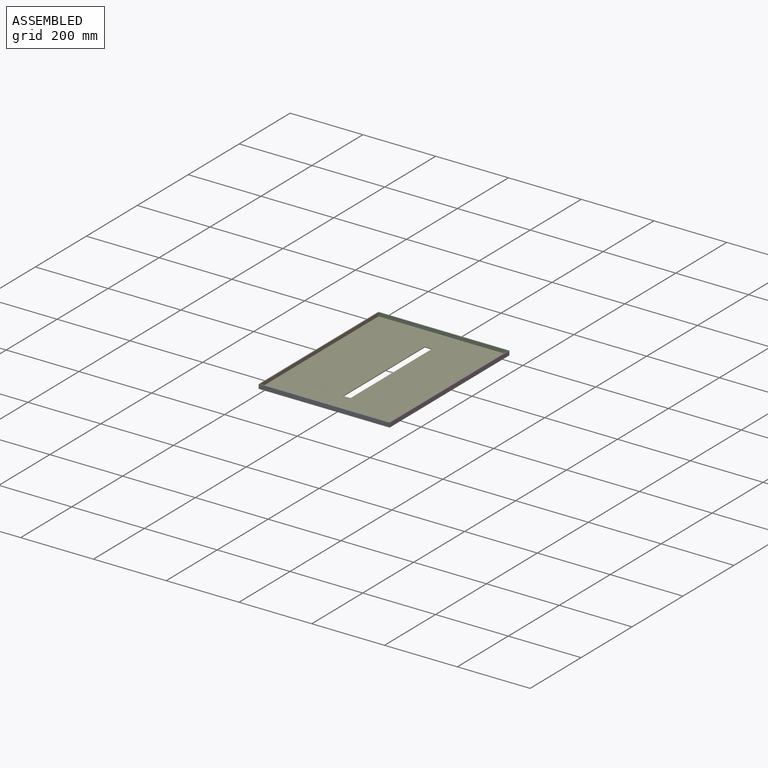
[diagram: assembled view]
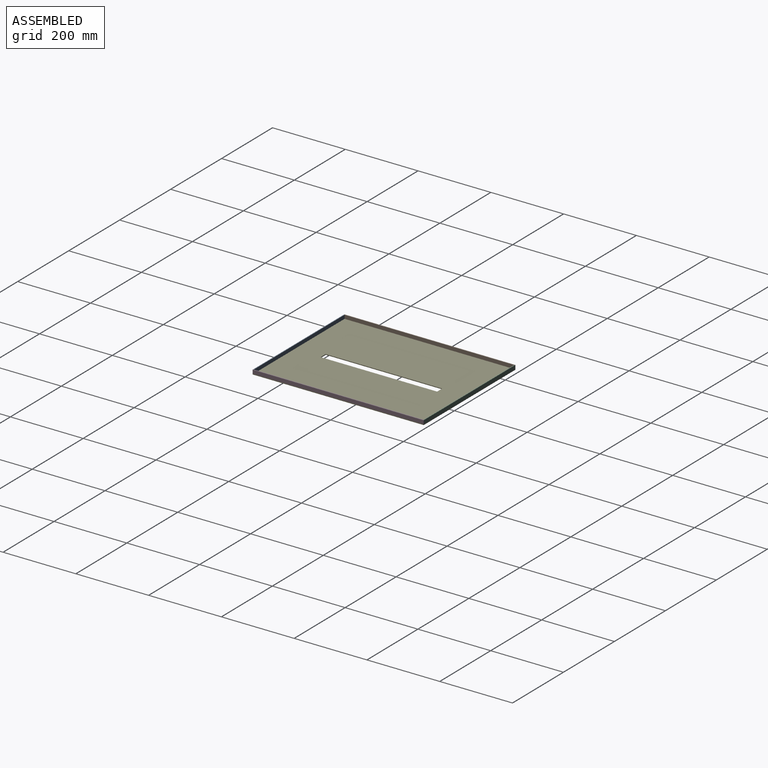
[diagram: assembled view, second angle]
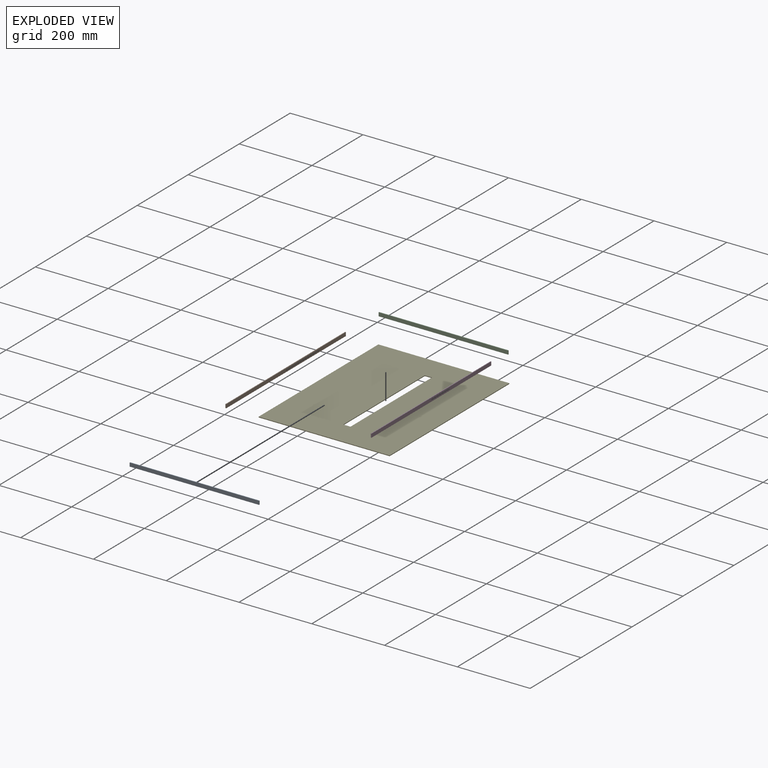
[diagram: exploded view]
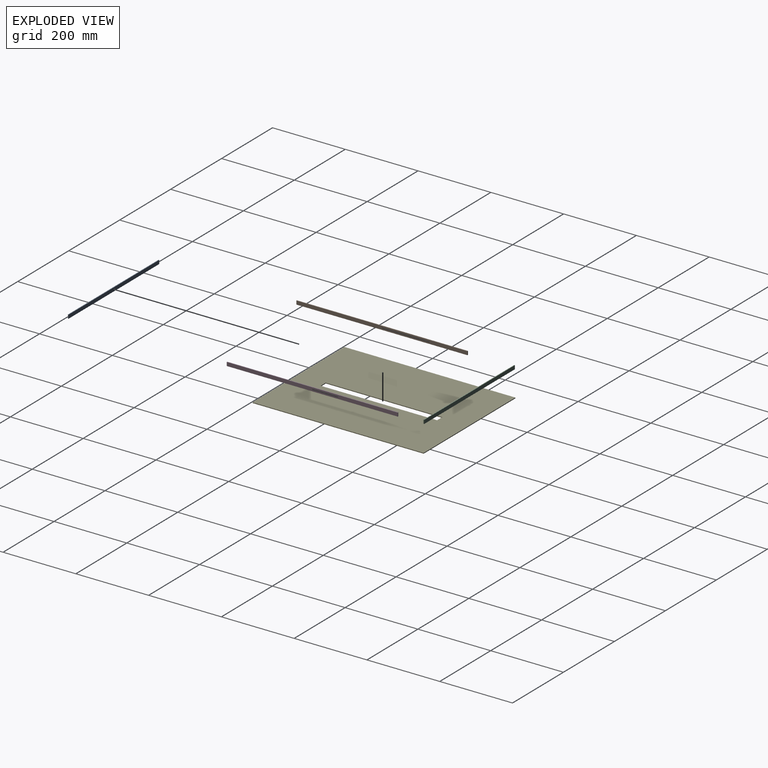
[diagram: exploded view, second angle]
ASSEMBLY  parts=5 mates=12
PART A: 6 faces, bbox 356x2x10 mm
  f0: plane 10x2mm, normal (-1,0,0), area 20mm2, adj f1,f3,f4,f5
  f1: plane 356x2mm, normal (0,0,-1), area 712mm2, adj f0,f2,f4,f5
  f2: plane 10x2mm, normal (1,0,0), area 20mm2, adj f1,f3,f4,f5
  f3: plane 356x2mm, normal (0,0,1), area 712mm2, adj f0,f2,f4,f5
  f4: plane 356x10mm, normal (0,-1,0), area 3560mm2, adj f0,f1,f2,f3
  f5: plane 356x10mm, normal (0,1,0), area 3560mm2, adj f0,f1,f2,f3
PART B: 6 faces, bbox 470x2x10 mm
  f0: plane 10x2mm, normal (-1,0,0), area 20mm2, adj f1,f3,f4,f5
  f1: plane 470x2mm, normal (0,0,-1), area 940mm2, adj f0,f2,f4,f5
  f2: plane 10x2mm, normal (1,0,0), area 20mm2, adj f1,f3,f4,f5
  f3: plane 470x2mm, normal (0,0,1), area 940mm2, adj f0,f2,f4,f5
  f4: plane 470x10mm, normal (0,-1,0), area 4700mm2, adj f0,f1,f2,f3
  f5: plane 470x10mm, normal (0,1,0), area 4700mm2, adj f0,f1,f2,f3
PART C: same geometry as A
PART D: same geometry as B
PART E: 10 faces, bbox 360x2x470 mm
  f0: plane 360x2mm, normal (0,0,1), area 720mm2, adj f1,f7,f8,f9
  f1: plane 470x2mm, normal (-1,0,0), area 940mm2, adj f0,f2,f8,f9
  f2: plane 360x2mm, normal (0,0,-1), area 720mm2, adj f1,f7,f8,f9
  f3: plane 320x2mm, normal (1,0,0), area 640mm2, adj f4,f6,f8,f9
  f4: plane 20x2mm, normal (0,0,-1), area 40mm2, adj f3,f5,f8,f9
  f5: plane 320x2mm, normal (-1,0,0), area 640mm2, adj f4,f6,f8,f9
  f6: plane 20x2mm, normal (0,0,1), area 40mm2, adj f3,f5,f8,f9
  f7: plane 470x2mm, normal (1,0,0), area 940mm2, adj f0,f2,f8,f9
  f8: plane 470x360mm, normal (0,-1,0), area 162800mm2, adj f0,f1,f2,f3,f4,f5,f6,f7
  f9: plane 470x360mm, normal (0,1,0), area 162800mm2, adj f0,f1,f2,f3,f4,f5,f6,f7
PLACE A t=(62.84,17.71,8.07)mm
PLACE B rot(axis=(-0.71,0.71,0),180deg) t=(-117.16,250.71,8.07)mm
PLACE C t=(62.84,485.71,8.07)mm
PLACE D rot(axis=(0,0,1),90deg) t=(240.84,250.71,8.07)mm
PLACE E rot(axis=(-1,0,0),90deg) t=(62.84,250.71,1.07)mm
MATE planar D.f0 <-> E.f2  axis (0,-1,0) through (241.84,15.71,8.07)mm
MATE planar C.f2 <-> D.f5  axis (1,0,0) through (240.84,484.71,8.07)mm
MATE planar E.f0 <-> B.f0  axis (0,1,0) through (62.84,485.71,2.07)mm
MATE planar C.f5 <-> E.f0  axis (0,1,0) through (62.84,485.71,8.07)mm
MATE planar E.f8 <-> D.f1  axis (0,0,1) through (62.44,250.71,3.07)mm
MATE planar A.f2 <-> D.f5  axis (1,0,0) through (240.84,16.71,8.07)mm
MATE planar E.f8 <-> C.f1  axis (0,0,1) through (62.44,250.71,3.07)mm
MATE planar B.f3 <-> E.f8  axis (0,0,-1) through (-116.16,250.71,3.07)mm
MATE planar E.f7 <-> D.f4  axis (1,0,0) through (242.84,250.71,2.07)mm
MATE planar E.f2 <-> A.f4  axis (0,-1,0) through (62.84,15.71,2.07)mm
MATE planar B.f5 <-> E.f1  axis (-1,0,0) through (-117.16,250.71,8.07)mm
MATE planar E.f8 <-> A.f1  axis (0,0,1) through (62.44,250.71,3.07)mm
